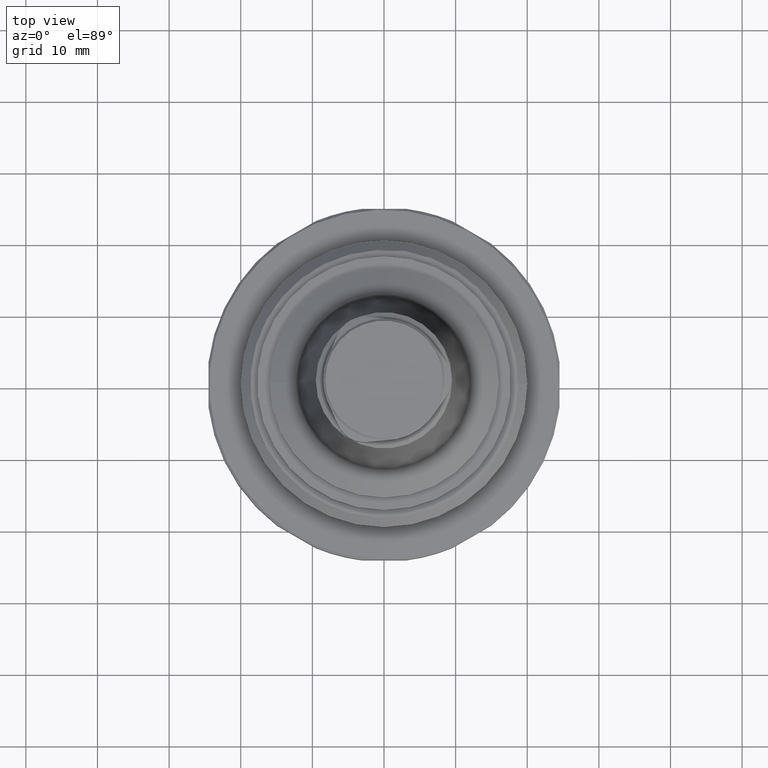
[diagram: clean part render]
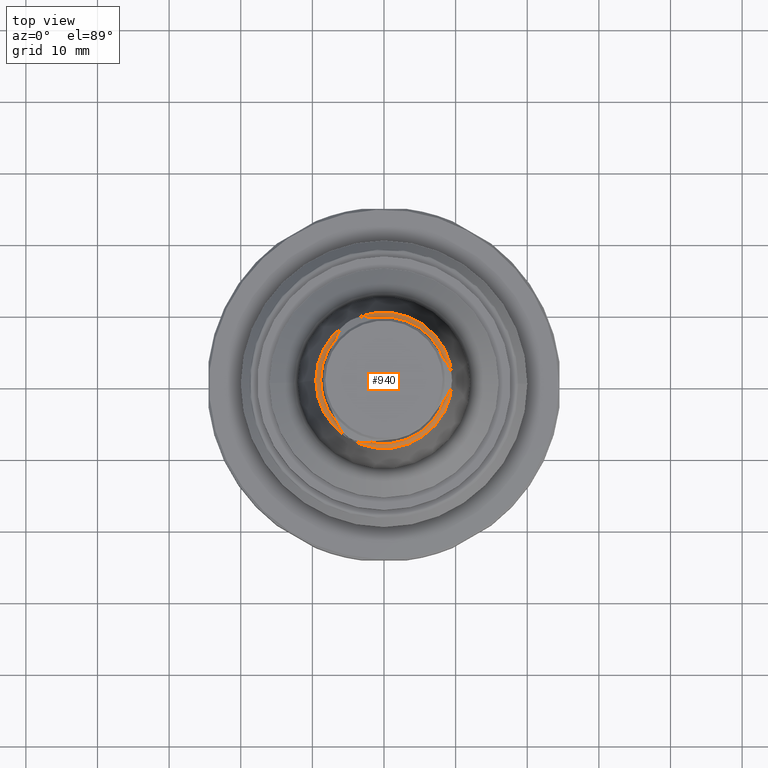
[diagram: same view with one face highlighted and labeled with its STEP entity id]
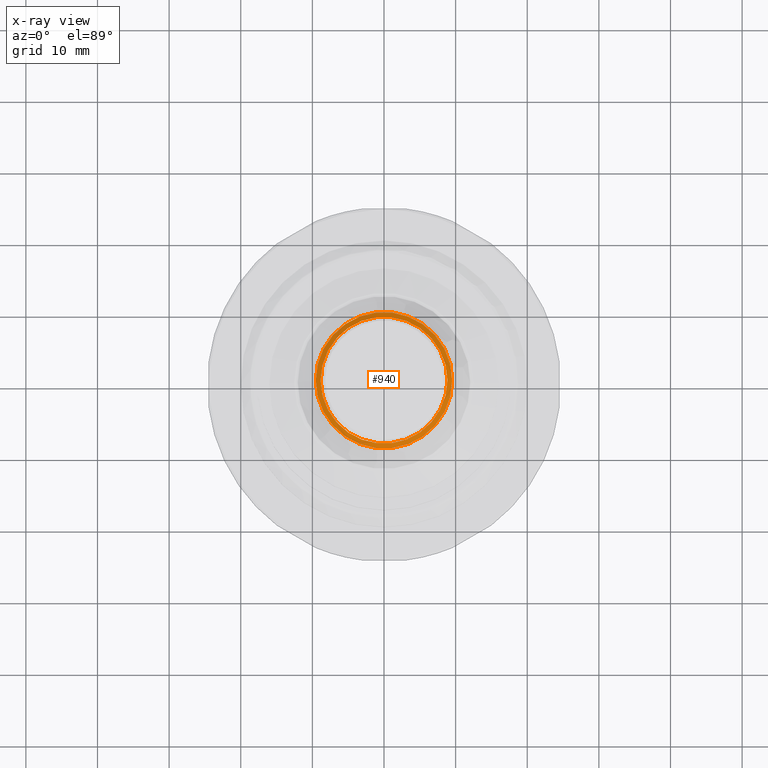
[diagram: x-ray of the same camera — body ghosted, the highlighted face saturated]
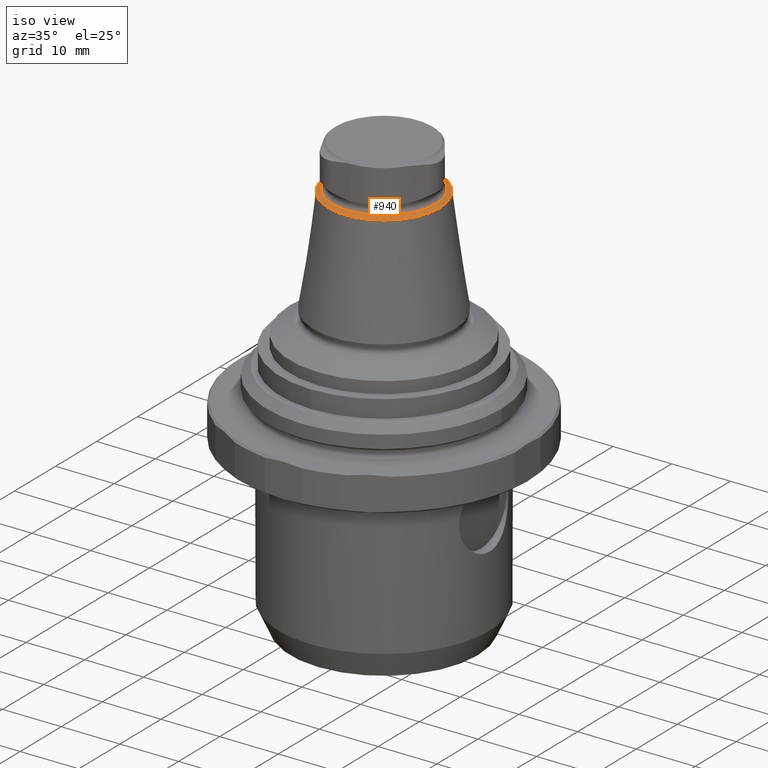
[diagram: same view with one face highlighted and labeled with its STEP entity id]
A machine part, top view. The second image highlights one B-rep face of the part: STEP entity #940.
The next image is the same camera in x-ray: the body ghosted, the highlighted face saturated — about 0% of this face is hidden behind the body in this view.
A second angle (iso view) of the same face is appended — the face is thin or edge-on in the first view.
In plain terms, the highlighted conical surface has half-angle 60 deg.
Its self-contained STEP definition (entity closure, byte-faithful):
#90=CONICAL_SURFACE('',#1042,9.52044245468562,1.0471975511966);
#288=ORIENTED_EDGE('',*,*,#485,.T.);
#289=ORIENTED_EDGE('',*,*,#486,.F.);
#485=EDGE_CURVE('',#593,#593,#666,.T.);
#486=EDGE_CURVE('',#594,#594,#667,.T.);
#593=VERTEX_POINT('',#1640);
#594=VERTEX_POINT('',#1643);
#666=CIRCLE('',#1041,8.85);
#667=CIRCLE('',#1043,9.52044245468562);
#739=EDGE_LOOP('',(#288));
#740=EDGE_LOOP('',(#289));
#835=FACE_BOUND('',#739,.T.);
#836=FACE_BOUND('',#740,.T.);
#940=ADVANCED_FACE('',(#835,#836),#90,.T.);
#1041=AXIS2_PLACEMENT_3D('',#1639,#1229,#1230);
#1042=AXIS2_PLACEMENT_3D('',#1641,#1231,#1232);
#1043=AXIS2_PLACEMENT_3D('',#1642,#1233,#1234);
#1229=DIRECTION('',(1.22464605849178E-16,1.51929083932157E-64,-1.));
#1230=DIRECTION('',(-1.,6.12303176911188E-17,-1.22464605849178E-16));
#1231=DIRECTION('',(1.22464605849178E-16,1.51929083932157E-64,-1.));
#1232=DIRECTION('',(-1.,6.12303176911188E-17,-1.22464605849178E-16));
#1233=DIRECTION('',(1.22464605849178E-16,1.51929083932157E-64,-1.));
#1234=DIRECTION('',(-1.,6.12303176911188E-17,-1.22464605849178E-16));
#1639=CARTESIAN_POINT('',(-2.64487718835849E-15,-3.2812237099366E-63,21.5970742731643));
#1640=CARTESIAN_POINT('',(-8.85,5.41888311566402E-16,21.5970742731643));
#1641=CARTESIAN_POINT('',(-2.59747357259916E-15,-3.22241498012077E-63,21.2099941414754));
#1642=CARTESIAN_POINT('',(-2.59747357259916E-15,-3.22241498012077E-63,21.2099941414754));
#1643=CARTESIAN_POINT('',(-9.52044245468563,5.82939716060416E-16,21.2099941414754));